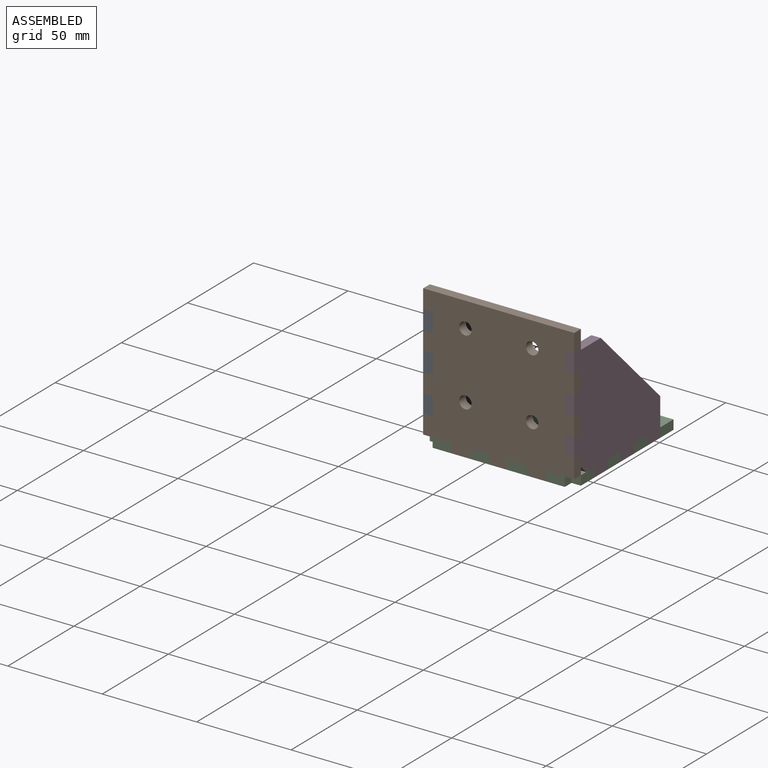
[diagram: assembled view]
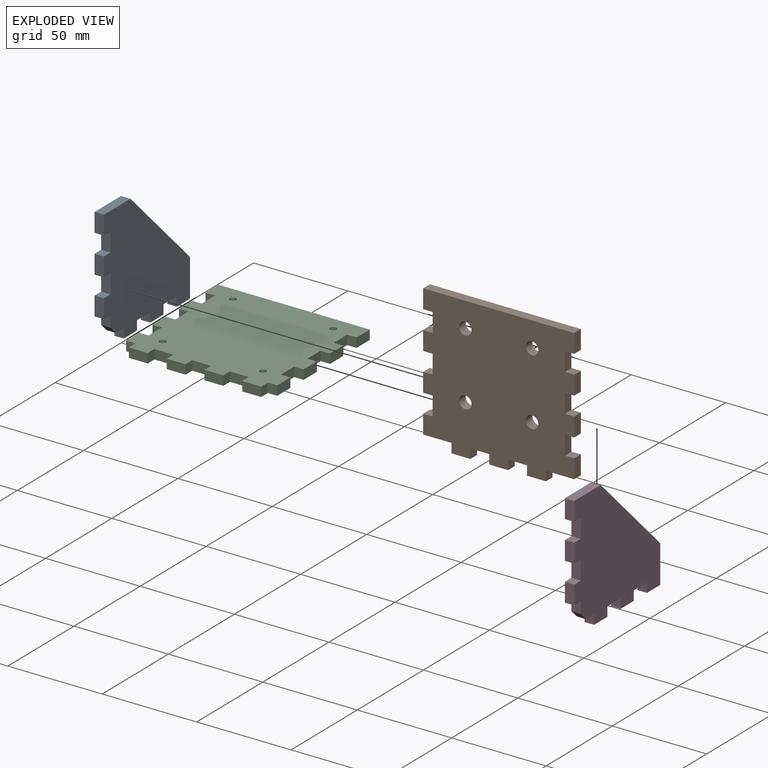
[diagram: exploded view]
GUIDED TOUR — MATED ASSEMBLY (Onshape document 3f007a9c0ce4e5aa89d190f3, AutoMate assembly 3f007a9c0ce4e5aa89d190f3_5e627fd75646f0ea4205f5be_51a73e98fbe0dfce0458883f_default)

This assembly has 4 components, labeled P0..P3 below (a component is one placed occurrence of a part; the same part can appear more than once), held together by 2 mates. A mate is a constraint between two components; its type names the relative motion it leaves free:
  FASTENED — locks the two components together rigidly (no relative motion).
Axis/direction vectors are unit vectors and 'through' points are millimeter coordinates, both in the assembly's world frame.

MATES
  1. FASTENED "Fastened 1": P2 <-> P1, direction (1.000, 0.000, 0.000) through (-28.48, -35.53, 2.22) mm
  2. FASTENED "Fastened 2": P1 <-> P3, direction (0.000, 0.000, 1.000) through (34.02, -35.53, 14.72) mm

ASSEMBLY ORDER
  1. P1 — the base component [order heuristic]
  2. P0 [order heuristic]
  3. P2 [order heuristic]
  4. P3 [order heuristic]
Order-tag legend:
  [order heuristic] — this assembly is geometrically interlocked (no collision-free removal order exists), so components are listed in mate-graph order; insertion feasibility is not verified.

Of the 4 components, 4 carry the full construction recipe — the FeatureScript program that regenerates the part's solid from scratch; the rest are supplied as boundary geometry only.
Each toured component is shown spotlighted twice — in the assembled view, then in the exploded view, where a leader line traces a displaced component back to its assembled socket (saturated green if recipe-attached, orange if geometry-only; every other component desaturated gray) — followed by its recipe or geometry summary and the mates that hold it.
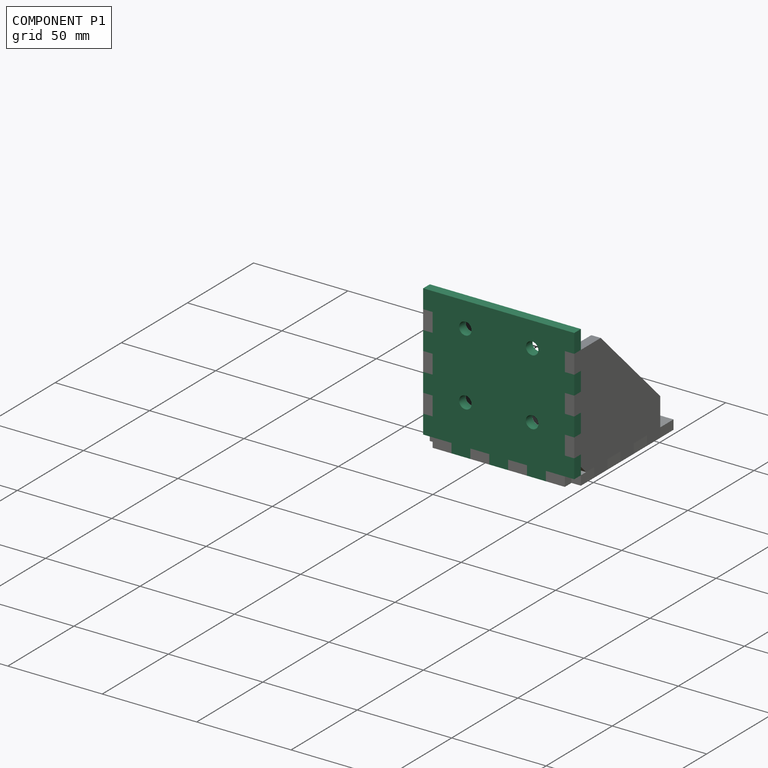
[diagram: component P1 — assembled]
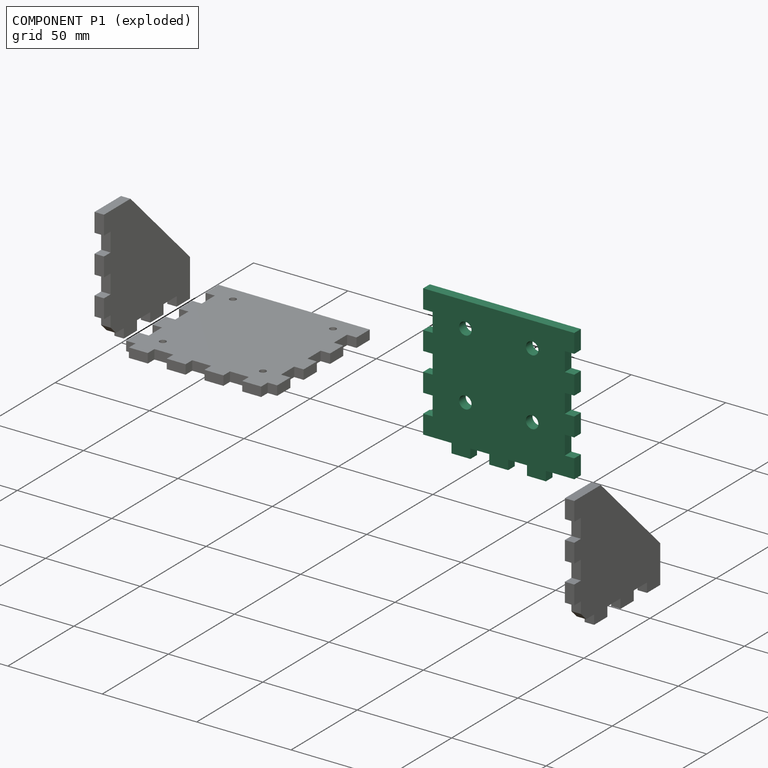
[diagram: component P1 — exploded]
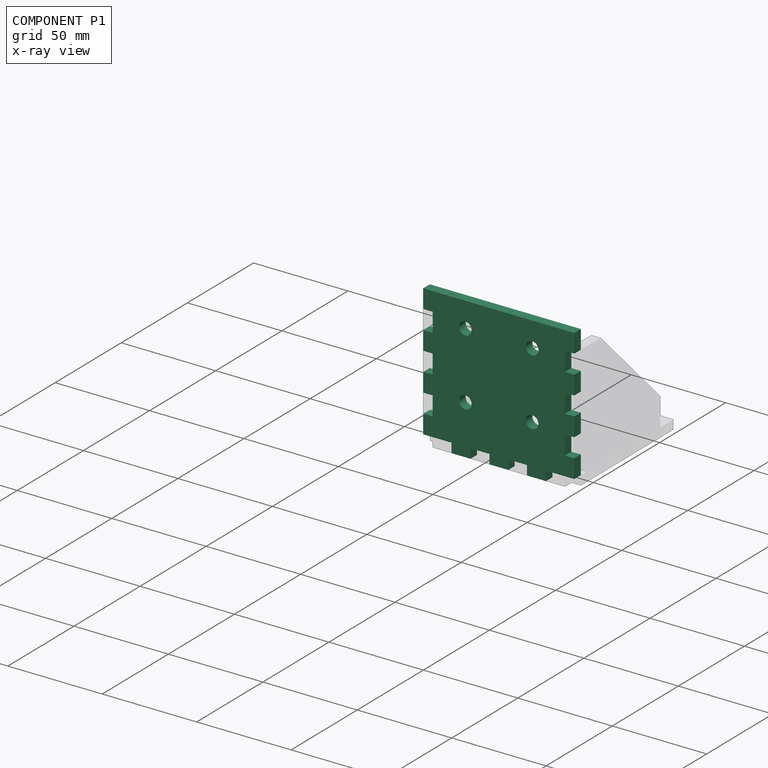
[diagram: component P1 — x-ray view]
COMPONENT P1 — recipe-attached (CADFS 00843545, mesh-verified: the recipe's output STEP matches this component's geometry to below the mesh-comparison resolution (tessellation chordal tolerance ~0.165 mm)).
Held by: FASTENED mate "Fastened 1" to P2; FASTENED mate "Fastened 2" to P3.
Construction recipe (FeatureScript — the CAD program that rebuilds this solid; sketch coordinates are in the units given by the * unit suffixes, e.g. mm):

FeatureScript 1511;
import(path : "onshape/std/geometry.fs", version : "1511.0");
import(path : "onshape/std/common.fs", version : "1511.0");
const mm = millimeter;
const VERTEX = EntityType.VERTEX;
const EDGE = EntityType.EDGE;
const FACE = EntityType.FACE;
const BODY = EntityType.BODY;
function v(x, y){return vector(x, y);}
function OD(order){return orderDisambiguation(order);}
function OSD(set){return originalSetDisambiguation(set);}
function TD(topology){return topologyDisambiguation(topology);}
function TDD(query){return trueDependencyDisambiguation(query);}
function sQuery(a, b, c) {return sketchEntityQuery(a, b, c);}

annotation { "Feature Type Name" : "Feature", "Feature Type Description" : "" }
export const myFeature = defineFeature(function(context is Context, id is Id, definition is map)
    precondition{}
    {
        {
            var Q0;
            Q0=qCreatedBy(makeId("Right.planeOp"),FACE);
            var sketch = newSketch(context, id + "F0", { "sketchPlane" : qUnion([Q0])});
            skLineSegment(sketch, "E0.bottom", {"start": v(35, 35) * mm, "end": v(-35, 35) * mm});
            skLineSegment(sketch, "E0.top", {"start": v(35, -35) * mm, "end": v(-35, -35) * mm});
            skLineSegment(sketch, "E0.left", {"start": v(35, 35) * mm, "end": v(35, -35) * mm});
            skLineSegment(sketch, "E0.right", {"start": v(-35, 35) * mm, "end": v(-35, -35) * mm});
            skPoint(sketch, "E0.middle", {"position": v(0, 0) * mm});
            skSolve(sketch);
        }
        {
            var Q0;
            Q0 = qSketchRegion(id + "F0", true);
            extrude(context, id + "F1", {"entities" : qUnion([Q0]), "endBound" : BoundingType.SYMMETRIC, "depth" : 5 * mm, "offsetDistance" : 25 * mm});
        }
        {
            var Q0;
            Q0=makeQuery(id+"F1.opExtrude","CAP_FACE",FACE,{"disambiguationData":[OSD([sQuery(id+"F0.wireOp",EDGE,"E0.bottom"),sQuery(id+"F0.wireOp",EDGE,"E0.top"),sQuery(id+"F0.wireOp",EDGE,"E0.left"),sQuery(id+"F0.wireOp",EDGE,"E0.right")])],"isStart":false});
            var sketch = newSketch(context, id + "F2", { "sketchPlane" : qUnion([Q0])});
            skLineSegment(sketch, "E1.bottom", {"start": v(-25, -35) * mm, "end": v(-15, -35) * mm});
            skLineSegment(sketch, "E1.top", {"start": v(-25, -40) * mm, "end": v(-15, -40) * mm});
            skLineSegment(sketch, "E1.left", {"start": v(-25, -35) * mm, "end": v(-25, -40) * mm});
            skLineSegment(sketch, "E1.right", {"start": v(-15, -35) * mm, "end": v(-15, -40) * mm});
            skLineSegment(sketch, "E2.1.0.0", {"start": v(5, -35) * mm, "end": v(5, -40) * mm});
            skLineSegment(sketch, "E2.1.0.1", {"start": v(-5, -35) * mm, "end": v(-5, -40) * mm});
            skLineSegment(sketch, "E2.1.0.2", {"start": v(-5, -40) * mm, "end": v(5, -40) * mm});
            skLineSegment(sketch, "E2.1.0.3", {"start": v(-5, -35) * mm, "end": v(5, -35) * mm});
            skLineSegment(sketch, "E2.2.0.0", {"start": v(25, -35) * mm, "end": v(25, -40) * mm});
            skLineSegment(sketch, "E2.2.0.1", {"start": v(15, -35) * mm, "end": v(15, -40) * mm});
            skLineSegment(sketch, "E2.2.0.2", {"start": v(15, -40) * mm, "end": v(25, -40) * mm});
            skLineSegment(sketch, "E2.2.0.3", {"start": v(15, -35) * mm, "end": v(25, -35) * mm});
            skLineSegment(sketch, "E2.direction1", {"start": v(-25, -40) * mm, "end": v(-5, -40) * mm, "construction": true});
            skSolve(sketch);
        }
        {
            var Q0;
            Q0 = qSketchRegion(id + "F2", true);
            extrude(context, id + "F3", {"entities" : qUnion([Q0]), "operationType" : NewBodyOperationType.ADD, "oppositeDirection" : true, "depth" : 5 * mm, "offsetDistance" : 25 * mm});
        }
        {
            var Q0;
            {var subQ1=sQuery(id+"F2.wireOp",EDGE,"E1.bottom");Q0=makeQuery(id+"F2.imprint","IMPRINT",FACE,{"disambiguationData":[TD([[makeQuery(id+"F2.imprint","IMPRINT",EDGE,{"derivedFrom":subQ1}),-1.0]])]});}
            var sketch = newSketch(context, id + "F4", { "sketchPlane" : qUnion([Q0])});
            skLineSegment(sketch, "E3.bottom", {"start": v(-35, -35) * mm, "end": v(-40, -35) * mm});
            skLineSegment(sketch, "E3.top", {"start": v(-35, -25) * mm, "end": v(-40, -25) * mm});
            skLineSegment(sketch, "E3.left", {"start": v(-35, -35) * mm, "end": v(-35, -25) * mm});
            skLineSegment(sketch, "E3.right", {"start": v(-40, -35) * mm, "end": v(-40, -25) * mm});
            skLineSegment(sketch, "E4.0.1.0", {"start": v(-35, -15) * mm, "end": v(-35, -5) * mm});
            skLineSegment(sketch, "E4.0.1.1", {"start": v(-40, -15) * mm, "end": v(-40, -5) * mm});
            skLineSegment(sketch, "E4.0.1.2", {"start": v(-35, -15) * mm, "end": v(-40, -15) * mm});
            skLineSegment(sketch, "E4.0.1.3", {"start": v(-35, -5) * mm, "end": v(-40, -5) * mm});
            skLineSegment(sketch, "E4.0.2.0", {"start": v(-35, 5) * mm, "end": v(-35, 15) * mm});
            skLineSegment(sketch, "E4.0.2.1", {"start": v(-40, 5) * mm, "end": v(-40, 15) * mm});
            skLineSegment(sketch, "E4.0.2.2", {"start": v(-35, 5) * mm, "end": v(-40, 5) * mm});
            skLineSegment(sketch, "E4.0.2.3", {"start": v(-35, 15) * mm, "end": v(-40, 15) * mm});
            skLineSegment(sketch, "E4.0.3.0", {"start": v(-35, 25) * mm, "end": v(-35, 35) * mm});
            skLineSegment(sketch, "E4.0.3.1", {"start": v(-40, 25) * mm, "end": v(-40, 35) * mm});
            skLineSegment(sketch, "E4.0.3.2", {"start": v(-35, 25) * mm, "end": v(-40, 25) * mm});
            skLineSegment(sketch, "E4.0.3.3", {"start": v(-35, 35) * mm, "end": v(-40, 35) * mm});
            skLineSegment(sketch, "E4.direction1", {"start": v(-40, -35) * mm, "end": v(-15, -35) * mm, "construction": true});
            skLineSegment(sketch, "E4.direction2", {"start": v(-40, -35) * mm, "end": v(-40, -15) * mm, "construction": true});
            skLineSegment(sketch, "E5.1.0.0", {"start": v(40, 25) * mm, "end": v(40, 35) * mm});
            skLineSegment(sketch, "E5.1.0.1", {"start": v(40, 25) * mm, "end": v(35, 25) * mm});
            skLineSegment(sketch, "E5.1.0.2", {"start": v(40, -35) * mm, "end": v(35, -35) * mm});
            skLineSegment(sketch, "E5.1.0.3", {"start": v(40, 15) * mm, "end": v(35, 15) * mm});
            skLineSegment(sketch, "E5.1.0.4", {"start": v(40, -35) * mm, "end": v(40, -25) * mm});
            skLineSegment(sketch, "E5.1.0.5", {"start": v(35, -35) * mm, "end": v(35, -15) * mm, "construction": true});
            skLineSegment(sketch, "E5.1.0.6", {"start": v(40, 5) * mm, "end": v(40, 15) * mm});
            skLineSegment(sketch, "E5.1.0.7", {"start": v(40, -15) * mm, "end": v(40, -5) * mm});
            skLineSegment(sketch, "E5.1.0.8", {"start": v(40, -15) * mm, "end": v(35, -15) * mm});
            skLineSegment(sketch, "E5.1.0.9", {"start": v(35, 5) * mm, "end": v(35, 15) * mm});
            skLineSegment(sketch, "E5.1.0.10", {"start": v(40, 35) * mm, "end": v(35, 35) * mm});
            skLineSegment(sketch, "E5.1.0.11", {"start": v(40, -25) * mm, "end": v(35, -25) * mm});
            skLineSegment(sketch, "E5.1.0.12", {"start": v(35, -15) * mm, "end": v(35, -5) * mm});
            skLineSegment(sketch, "E5.1.0.13", {"start": v(40, 5) * mm, "end": v(35, 5) * mm});
            skLineSegment(sketch, "E5.1.0.14", {"start": v(40, -5) * mm, "end": v(35, -5) * mm});
            skLineSegment(sketch, "E5.1.0.15", {"start": v(35, 25) * mm, "end": v(35, 35) * mm});
            skLineSegment(sketch, "E5.1.0.16", {"start": v(35, -35) * mm, "end": v(35, -25) * mm});
            skLineSegment(sketch, "E5.direction1", {"start": v(-40, -35) * mm, "end": v(35, -35) * mm, "construction": true});
            skSolve(sketch);
        }
        {
            var Q0;
            Q0 = qSketchRegion(id + "F4", true);
            var Q1;
            Q1=makeQuery(id+"F3.boolean.opBoolean","MERGE",FACE,{"derivedFrom":[makeQuery(id+"F1.opExtrude","CAP_FACE",FACE,{"disambiguationData":[OSD([sQuery(id+"F0.wireOp",EDGE,"E0.bottom"),sQuery(id+"F0.wireOp",EDGE,"E0.top"),sQuery(id+"F0.wireOp",EDGE,"E0.left"),sQuery(id+"F0.wireOp",EDGE,"E0.right")])],"isStart":true}),makeQuery(id+"F3.opExtrude","CAP_FACE",FACE,{"disambiguationData":[OSD([sQuery(id+"F2.wireOp",EDGE,"E1.bottom"),sQuery(id+"F2.wireOp",EDGE,"E1.top"),sQuery(id+"F2.wireOp",EDGE,"E1.left"),sQuery(id+"F2.wireOp",EDGE,"E1.right")])],"isStart":false}),makeQuery(id+"F3.opExtrude","CAP_FACE",FACE,{"disambiguationData":[OSD([sQuery(id+"F2.wireOp",EDGE,"E2.1.0.0"),sQuery(id+"F2.wireOp",EDGE,"E2.1.0.1"),sQuery(id+"F2.wireOp",EDGE,"E2.1.0.2"),sQuery(id+"F2.wireOp",EDGE,"E2.1.0.3")])],"isStart":false}),makeQuery(id+"F3.opExtrude","CAP_FACE",FACE,{"disambiguationData":[OSD([sQuery(id+"F2.wireOp",EDGE,"E2.2.0.0"),sQuery(id+"F2.wireOp",EDGE,"E2.2.0.1"),sQuery(id+"F2.wireOp",EDGE,"E2.2.0.2"),sQuery(id+"F2.wireOp",EDGE,"E2.2.0.3")])],"isStart":false})]});
            extrude(context, id + "F5", {"entities" : qUnion([Q0]), "operationType" : NewBodyOperationType.ADD, "endBound" : BoundingType.UP_TO_SURFACE, "oppositeDirection" : true, "depth" : 25 * mm, "endBoundEntityFace" : qUnion([Q1]), "offsetDistance" : 25 * mm});
        }
        {
            var Q0;
            {var subQ1=sQuery(id+"F2.wireOp",EDGE,"E1.bottom");Q0=makeQuery(id+"F2.imprint","IMPRINT",FACE,{"disambiguationData":[TD([[makeQuery(id+"F2.imprint","IMPRINT",EDGE,{"derivedFrom":subQ1}),-1.0]])]});}
            var sketch = newSketch(context, id + "F6", { "sketchPlane" : qUnion([Q0])});
            skCircle(sketch, "E6", {"center": v(0, 4) * mm, "radius": 25 * mm, "construction": true});
            skLineSegment(sketch, "E7.bottom", {"start": v(17.68, 21.68) * mm, "end": v(-17.68, 21.68) * mm, "construction": true});
            skLineSegment(sketch, "E7.top", {"start": v(17.68, -13.68) * mm, "end": v(-17.68, -13.68) * mm, "construction": true});
            skLineSegment(sketch, "E7.left", {"start": v(17.68, 21.68) * mm, "end": v(17.68, -13.68) * mm, "construction": true});
            skLineSegment(sketch, "E7.right", {"start": v(-17.68, 21.68) * mm, "end": v(-17.68, -13.68) * mm, "construction": true});
            skSolve(sketch);
        }
        {
            var Q0;
            Q0=sQuery(id+"F6.wireOp",VERTEX,"E7.bottom.end");
            var Q1;
            Q1=sQuery(id+"F6.wireOp",VERTEX,"E7.bottom.start");
            var Q2;
            Q2=sQuery(id+"F6.wireOp",VERTEX,"E7.top.start");
            var Q3;
            Q3=sQuery(id+"F6.wireOp",VERTEX,"E7.top.end");
            var Q4;
            Q4=makeQuery(id+"F1.opExtrude","SWEPT_BODY",BODY,{"disambiguationData":[OSD([sQuery(id+"F0.wireOp",EDGE,"E0.bottom"),sQuery(id+"F0.wireOp",EDGE,"E0.top"),sQuery(id+"F0.wireOp",EDGE,"E0.left"),sQuery(id+"F0.wireOp",EDGE,"E0.right")])]});
            hole(context, id + "F7", {"style" : HoleStyle.SIMPLE, "endStyle" : HoleEndStyle.THROUGH, "standardTappedOrClearance" : lookupTablePath({ "fit" : "Normal", "standard" : "ISO", "size" : "M6", "type" : "Clearance" }), "standardBlindInLast" : lookupTablePath({ "fit" : "Standard", "standard" : "ISO", "size" : "M6", "type" : "Clearance" }), "holeDiameter" : 6.6 * mm, "majorDiameter" : 5 * mm, "isTappedThrough" : true, "tappedDepth" : 12 * mm, "tapClearance" : 3, "locations" : qUnion([Q0, Q1, Q2, Q3]), "scope" : qUnion([Q4])});
        }
    });
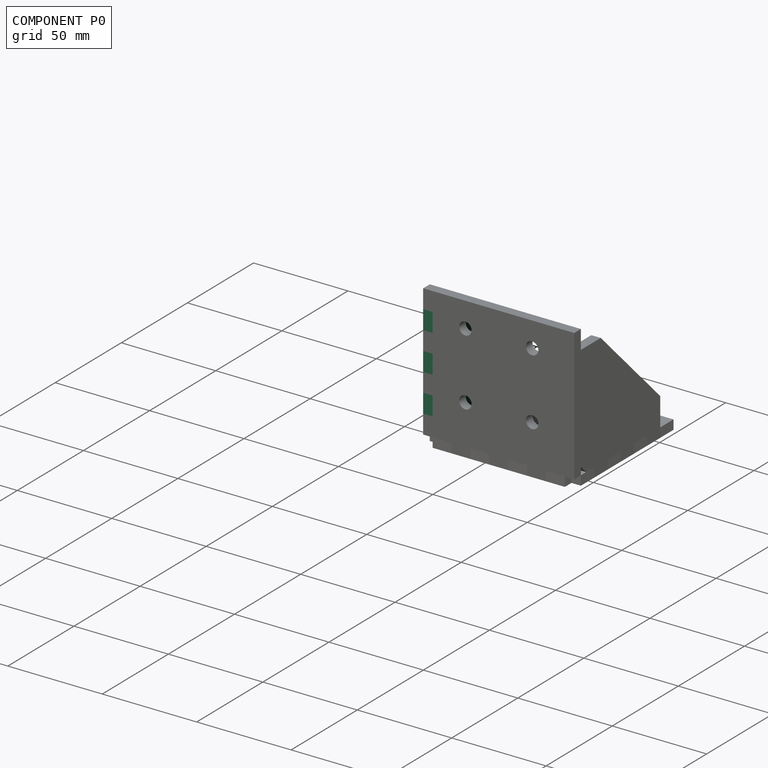
[diagram: component P0 — assembled]
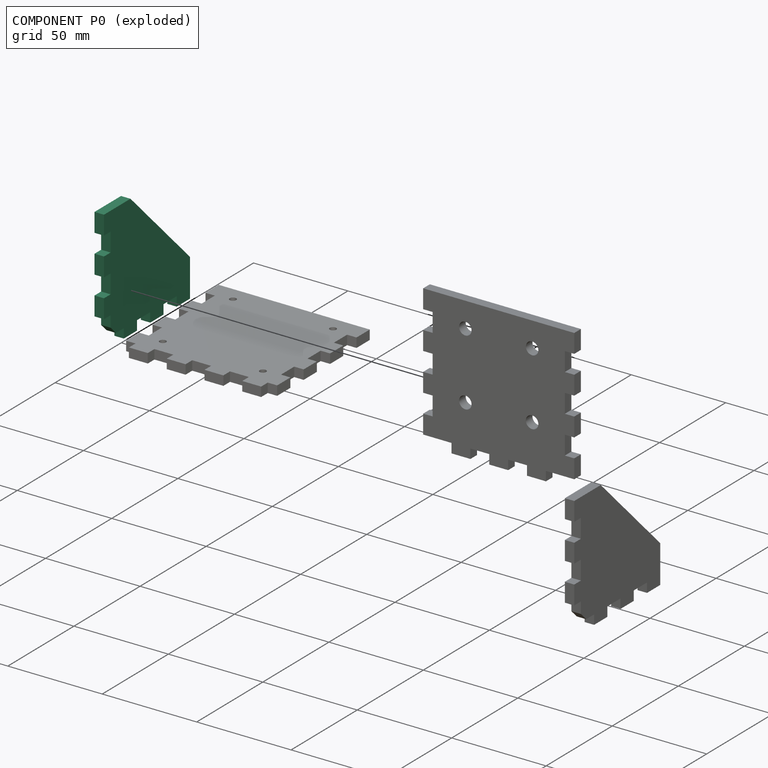
[diagram: component P0 — exploded]
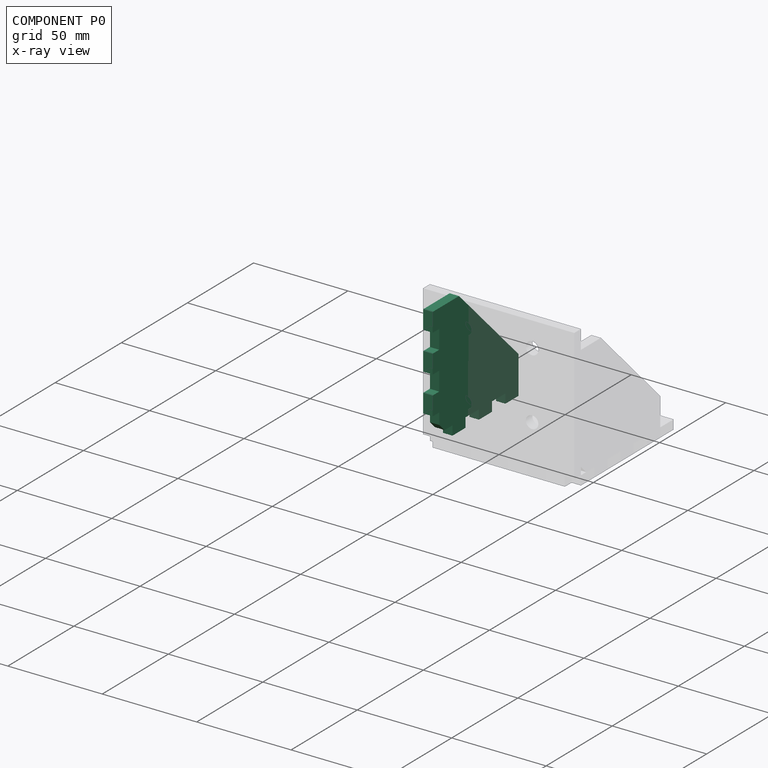
[diagram: component P0 — x-ray view]
COMPONENT P0 — recipe-attached (CADFS 00843546, mesh-verified: the recipe's output STEP matches this component's geometry to below the mesh-comparison resolution (tessellation chordal tolerance ~0.138 mm)).
Held by: no mates (free).
Construction recipe (FeatureScript — the CAD program that rebuilds this solid; sketch coordinates are in the units given by the * unit suffixes, e.g. mm):

FeatureScript 1511;
import(path : "onshape/std/geometry.fs", version : "1511.0");
import(path : "onshape/std/common.fs", version : "1511.0");
const mm = millimeter;
const VERTEX = EntityType.VERTEX;
const EDGE = EntityType.EDGE;
const FACE = EntityType.FACE;
const BODY = EntityType.BODY;
function v(x, y){return vector(x, y);}
function OD(order){return orderDisambiguation(order);}
function OSD(set){return originalSetDisambiguation(set);}
function TD(topology){return topologyDisambiguation(topology);}
function TDD(query){return trueDependencyDisambiguation(query);}
function sQuery(a, b, c) {return sketchEntityQuery(a, b, c);}

annotation { "Feature Type Name" : "Feature", "Feature Type Description" : "" }
export const myFeature = defineFeature(function(context is Context, id is Id, definition is map)
    precondition{}
    {
        {
            var Q0;
            Q0=qCreatedBy(makeId("Front.planeOp"),FACE);
            var sketch = newSketch(context, id + "F0", { "sketchPlane" : qUnion([Q0])});
            skLineSegment(sketch, "E0.bottom", {"start": v(30, 30) * mm, "end": v(-30, 30) * mm, "construction": true});
            skLineSegment(sketch, "E0.top", {"start": v(30, -30) * mm, "end": v(-30, -30) * mm});
            skLineSegment(sketch, "E0.left", {"start": v(30, 30) * mm, "end": v(30, -30) * mm, "construction": true});
            skLineSegment(sketch, "E0.right", {"start": v(-30, 30) * mm, "end": v(-30, -30) * mm});
            skPoint(sketch, "E0.middle", {"position": v(0, 0) * mm});
            skLineSegment(sketch, "E1", {"start": v(-30, 30) * mm, "end": v(-15, 30) * mm});
            skLineSegment(sketch, "E2", {"start": v(-15, 30) * mm, "end": v(30, -15) * mm});
            skLineSegment(sketch, "E3", {"start": v(30, -15) * mm, "end": v(30, -30) * mm});
            skSolve(sketch);
        }
        {
            var Q0;
            Q0 = qSketchRegion(id + "F0", true);
            extrude(context, id + "F1", {"entities" : qUnion([Q0]), "endBound" : BoundingType.SYMMETRIC, "depth" : 5 * mm, "offsetDistance" : 25 * mm});
        }
        {
            var Q0;
            Q0=makeQuery(id+"F1.opExtrude","CAP_FACE",FACE,{"disambiguationData":[OSD([sQuery(id+"F0.wireOp",EDGE,"E0.top"),sQuery(id+"F0.wireOp",EDGE,"E0.right"),sQuery(id+"F0.wireOp",EDGE,"E1"),sQuery(id+"F0.wireOp",EDGE,"E2"),sQuery(id+"F0.wireOp",EDGE,"E3")])],"isStart":false});
            var sketch = newSketch(context, id + "F2", { "sketchPlane" : qUnion([Q0])});
            skLineSegment(sketch, "E4.bottom", {"start": v(-30, 30) * mm, "end": v(-35, 30) * mm});
            skLineSegment(sketch, "E4.top", {"start": v(-30, 20) * mm, "end": v(-35, 20) * mm});
            skLineSegment(sketch, "E4.left", {"start": v(-30, 30) * mm, "end": v(-30, 20) * mm});
            skLineSegment(sketch, "E4.right", {"start": v(-35, 30) * mm, "end": v(-35, 20) * mm});
            skLineSegment(sketch, "E5.0.1.0", {"start": v(-30, 0) * mm, "end": v(-35, 0) * mm});
            skLineSegment(sketch, "E5.0.1.1", {"start": v(-30, 10) * mm, "end": v(-35, 10) * mm});
            skLineSegment(sketch, "E5.0.1.2", {"start": v(-30, 10) * mm, "end": v(-30, 0) * mm});
            skLineSegment(sketch, "E5.0.1.3", {"start": v(-35, 10) * mm, "end": v(-35, 0) * mm});
            skLineSegment(sketch, "E5.0.2.0", {"start": v(-30, -20) * mm, "end": v(-35, -20) * mm});
            skLineSegment(sketch, "E5.0.2.1", {"start": v(-30, -10) * mm, "end": v(-35, -10) * mm});
            skLineSegment(sketch, "E5.0.2.2", {"start": v(-30, -10) * mm, "end": v(-30, -20) * mm});
            skLineSegment(sketch, "E5.0.2.3", {"start": v(-35, -10) * mm, "end": v(-35, -20) * mm});
            skLineSegment(sketch, "E5.direction1", {"start": v(-35, 20) * mm, "end": v(-10, 20) * mm, "construction": true});
            skLineSegment(sketch, "E5.direction2", {"start": v(-35, 20) * mm, "end": v(-35, 0) * mm, "construction": true});
            skLineSegment(sketch, "E6.bottom", {"start": v(30, -30) * mm, "end": v(20, -30) * mm});
            skLineSegment(sketch, "E6.top", {"start": v(30, -35) * mm, "end": v(20, -35) * mm});
            skLineSegment(sketch, "E6.left", {"start": v(30, -30) * mm, "end": v(30, -35) * mm});
            skLineSegment(sketch, "E6.right", {"start": v(20, -30) * mm, "end": v(20, -35) * mm});
            skLineSegment(sketch, "E7.1.0.0", {"start": v(10, -35) * mm, "end": v(0, -35) * mm});
            skLineSegment(sketch, "E7.1.0.1", {"start": v(0, -30) * mm, "end": v(0, -35) * mm});
            skLineSegment(sketch, "E7.1.0.2", {"start": v(10, -30) * mm, "end": v(0, -30) * mm});
            skLineSegment(sketch, "E7.1.0.3", {"start": v(10, -30) * mm, "end": v(10, -35) * mm});
            skLineSegment(sketch, "E7.2.0.0", {"start": v(-10, -35) * mm, "end": v(-20, -35) * mm});
            skLineSegment(sketch, "E7.2.0.1", {"start": v(-20, -30) * mm, "end": v(-20, -35) * mm});
            skLineSegment(sketch, "E7.2.0.2", {"start": v(-10, -30) * mm, "end": v(-20, -30) * mm});
            skLineSegment(sketch, "E7.2.0.3", {"start": v(-10, -30) * mm, "end": v(-10, -35) * mm});
            skLineSegment(sketch, "E7.direction1", {"start": v(20, -35) * mm, "end": v(0, -35) * mm, "construction": true});
            skSolve(sketch);
        }
        {
            var Q0;
            Q0 = qSketchRegion(id + "F2", true);
            var Q1;
            Q1=makeQuery(id+"F1.opExtrude","CAP_FACE",FACE,{"disambiguationData":[OSD([sQuery(id+"F0.wireOp",EDGE,"E0.top"),sQuery(id+"F0.wireOp",EDGE,"E0.right"),sQuery(id+"F0.wireOp",EDGE,"E1"),sQuery(id+"F0.wireOp",EDGE,"E2"),sQuery(id+"F0.wireOp",EDGE,"E3")])],"isStart":true});
            extrude(context, id + "F3", {"entities" : qUnion([Q0]), "operationType" : NewBodyOperationType.ADD, "endBound" : BoundingType.UP_TO_SURFACE, "oppositeDirection" : true, "depth" : 25 * mm, "endBoundEntityFace" : qUnion([Q1]), "offsetDistance" : 25 * mm});
        }
        {
            var Q0;
            Q0=makeQuery(id+"F1.opExtrude","SWEPT_EDGE",EDGE,{"disambiguationData":[OSD([sQuery(id+"F0.wireOp",EDGE,"E0.top"),sQuery(id+"F0.wireOp",EDGE,"E0.right")])]});
            chamfer(context, id + "F4", {"entities" : qUnion([Q0]), "width" : 4 * mm, "tangentPropagation" : true});
        }
    });
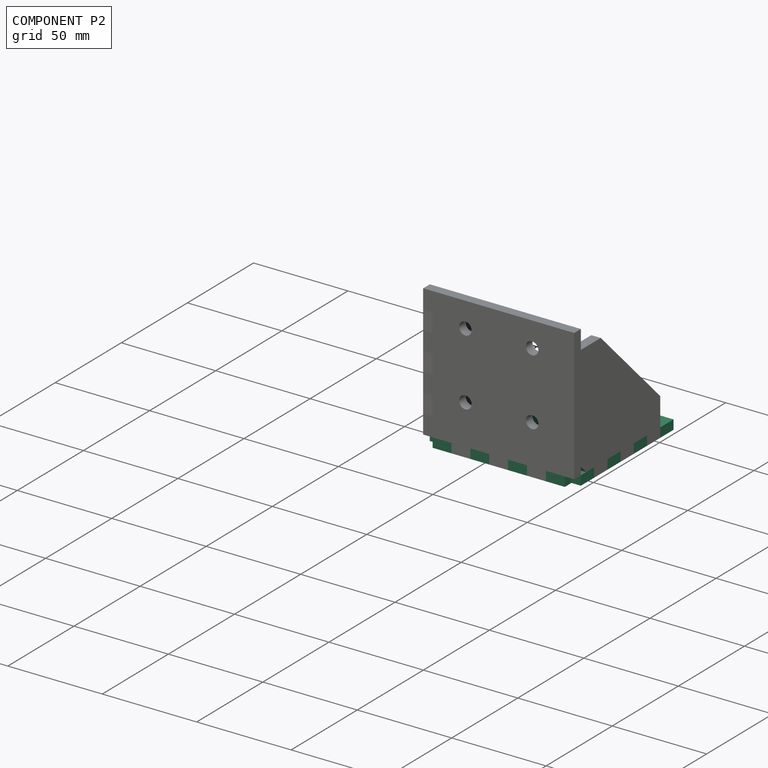
[diagram: component P2 — assembled]
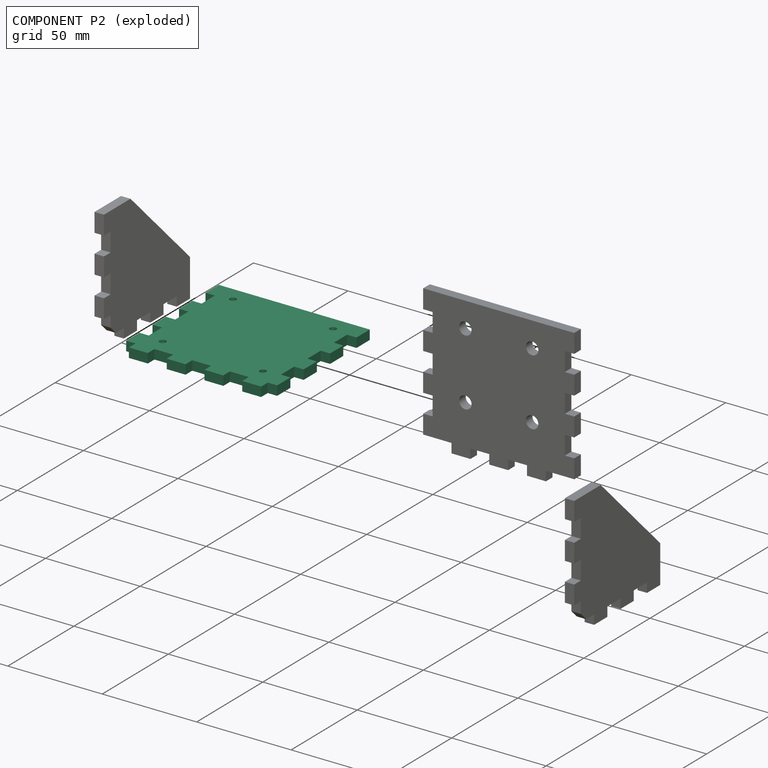
[diagram: component P2 — exploded]
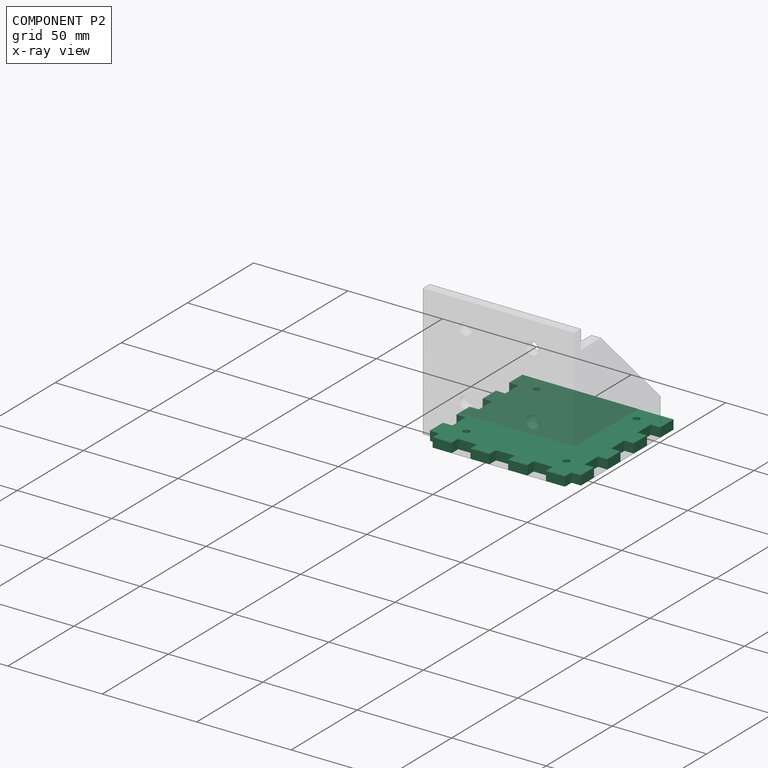
[diagram: component P2 — x-ray view]
COMPONENT P2 — recipe-attached (CADFS 00843544, mesh-verified: the recipe's output STEP matches this component's geometry to below the mesh-comparison resolution (tessellation chordal tolerance ~0.165 mm)).
Held by: FASTENED mate "Fastened 1" to P1.
Construction recipe (FeatureScript — the CAD program that rebuilds this solid; sketch coordinates are in the units given by the * unit suffixes, e.g. mm):

FeatureScript 1511;
import(path : "onshape/std/geometry.fs", version : "1511.0");
import(path : "onshape/std/common.fs", version : "1511.0");
const mm = millimeter;
const VERTEX = EntityType.VERTEX;
const EDGE = EntityType.EDGE;
const FACE = EntityType.FACE;
const BODY = EntityType.BODY;
function v(x, y){return vector(x, y);}
function OD(order){return orderDisambiguation(order);}
function OSD(set){return originalSetDisambiguation(set);}
function TD(topology){return topologyDisambiguation(topology);}
function TDD(query){return trueDependencyDisambiguation(query);}
function sQuery(a, b, c) {return sketchEntityQuery(a, b, c);}

annotation { "Feature Type Name" : "Feature", "Feature Type Description" : "" }
export const myFeature = defineFeature(function(context is Context, id is Id, definition is map)
    precondition{}
    {
        {
            var Q0;
            Q0=qCreatedBy(makeId("Top.planeOp"),FACE);
            var sketch = newSketch(context, id + "F0", { "sketchPlane" : qUnion([Q0])});
            skLineSegment(sketch, "E0.bottom", {"start": v(35, 35) * mm, "end": v(-35, 35) * mm});
            skLineSegment(sketch, "E0.top", {"start": v(35, -35) * mm, "end": v(-35, -35) * mm});
            skLineSegment(sketch, "E0.left", {"start": v(35, 35) * mm, "end": v(35, -35) * mm});
            skLineSegment(sketch, "E0.right", {"start": v(-35, 35) * mm, "end": v(-35, -35) * mm});
            skPoint(sketch, "E0.middle", {"position": v(0, 0) * mm});
            skSolve(sketch);
        }
        {
            var Q0;
            Q0=makeQuery(id+"F0.imprint","IMPRINT",FACE,{"disambiguationData":[TD([[makeQuery(id+"F0.imprint","IMPRINT",EDGE,{"derivedFrom":sQuery(id+"F0.wireOp",EDGE,"E0.bottom")}),1.0]])]});
            extrude(context, id + "F1", {"entities" : qUnion([Q0]), "endBound" : BoundingType.SYMMETRIC, "depth" : 5 * mm, "offsetDistance" : 25 * mm});
        }
        {
            var Q0;
            Q0=makeQuery(id+"F1.opExtrude","CAP_FACE",FACE,{"disambiguationData":[OSD([sQuery(id+"F0.wireOp",EDGE,"E0.bottom"),sQuery(id+"F0.wireOp",EDGE,"E0.top"),sQuery(id+"F0.wireOp",EDGE,"E0.left"),sQuery(id+"F0.wireOp",EDGE,"E0.right")])],"isStart":true});
            var sketch = newSketch(context, id + "F2", { "sketchPlane" : qUnion([Q0])});
            skLineSegment(sketch, "E1.bottom", {"start": v(-35, -35) * mm, "end": v(-40, -35) * mm});
            skLineSegment(sketch, "E1.top", {"start": v(-35, -25) * mm, "end": v(-40, -25) * mm});
            skLineSegment(sketch, "E1.left", {"start": v(-35, -35) * mm, "end": v(-35, -25) * mm});
            skLineSegment(sketch, "E1.right", {"start": v(-40, -35) * mm, "end": v(-40, -25) * mm});
            skLineSegment(sketch, "E2.bottom", {"start": v(35, -35) * mm, "end": v(40, -35) * mm});
            skLineSegment(sketch, "E2.top", {"start": v(35, -25) * mm, "end": v(40, -25) * mm});
            skLineSegment(sketch, "E2.left", {"start": v(35, -35) * mm, "end": v(35, -25) * mm});
            skLineSegment(sketch, "E2.right", {"start": v(40, -35) * mm, "end": v(40, -25) * mm});
            skLineSegment(sketch, "E3.0.1.0", {"start": v(35, -15) * mm, "end": v(40, -15) * mm});
            skLineSegment(sketch, "E3.0.1.1", {"start": v(40, -15) * mm, "end": v(40, -5) * mm});
            skLineSegment(sketch, "E3.0.1.2", {"start": v(-35, -15) * mm, "end": v(-35, -5) * mm});
            skLineSegment(sketch, "E3.0.1.3", {"start": v(-35, -15) * mm, "end": v(-40, -15) * mm});
            skLineSegment(sketch, "E3.0.1.4", {"start": v(35, -15) * mm, "end": v(35, -5) * mm});
            skLineSegment(sketch, "E3.0.1.5", {"start": v(-35, -5) * mm, "end": v(-40, -5) * mm});
            skLineSegment(sketch, "E3.0.1.6", {"start": v(35, -5) * mm, "end": v(40, -5) * mm});
            skLineSegment(sketch, "E3.0.1.7", {"start": v(-40, -15) * mm, "end": v(-40, -5) * mm});
            skLineSegment(sketch, "E3.0.2.0", {"start": v(35, 5) * mm, "end": v(40, 5) * mm});
            skLineSegment(sketch, "E3.0.2.1", {"start": v(40, 5) * mm, "end": v(40, 15) * mm});
            skLineSegment(sketch, "E3.0.2.2", {"start": v(-35, 5) * mm, "end": v(-35, 15) * mm});
            skLineSegment(sketch, "E3.0.2.3", {"start": v(-35, 5) * mm, "end": v(-40, 5) * mm});
            skLineSegment(sketch, "E3.0.2.4", {"start": v(35, 5) * mm, "end": v(35, 15) * mm});
            skLineSegment(sketch, "E3.0.2.5", {"start": v(-35, 15) * mm, "end": v(-40, 15) * mm});
            skLineSegment(sketch, "E3.0.2.6", {"start": v(35, 15) * mm, "end": v(40, 15) * mm});
            skLineSegment(sketch, "E3.0.2.7", {"start": v(-40, 5) * mm, "end": v(-40, 15) * mm});
            skLineSegment(sketch, "E3.direction1", {"start": v(-40, -35) * mm, "end": v(-15, -35) * mm, "construction": true});
            skLineSegment(sketch, "E3.direction2", {"start": v(-40, -35) * mm, "end": v(-40, -15) * mm, "construction": true});
            skLineSegment(sketch, "E4.0.0.3", {"start": v(35, 25) * mm, "end": v(40, 25) * mm});
            skLineSegment(sketch, "E4.3.0.3", {"start": v(40, 25) * mm, "end": v(40, 35) * mm});
            skLineSegment(sketch, "E4.6.0.3", {"start": v(-35, 25) * mm, "end": v(-35, 35) * mm});
            skLineSegment(sketch, "E4.9.0.3", {"start": v(-35, 25) * mm, "end": v(-40, 25) * mm});
            skLineSegment(sketch, "E4.12.0.3", {"start": v(35, 25) * mm, "end": v(35, 35) * mm});
            skLineSegment(sketch, "E4.15.0.3", {"start": v(-35, 35) * mm, "end": v(-40, 35) * mm});
            skLineSegment(sketch, "E4.18.0.3", {"start": v(35, 35) * mm, "end": v(40, 35) * mm});
            skLineSegment(sketch, "E4.21.0.3", {"start": v(-40, 25) * mm, "end": v(-40, 35) * mm});
            skSolve(sketch);
        }
        {
            var Q0;
            Q0 = qSketchRegion(id + "F2", true);
            var Q1;
            Q1=makeQuery(id+"F1.opExtrude","CAP_FACE",FACE,{"disambiguationData":[OSD([sQuery(id+"F0.wireOp",EDGE,"E0.bottom"),sQuery(id+"F0.wireOp",EDGE,"E0.top"),sQuery(id+"F0.wireOp",EDGE,"E0.left"),sQuery(id+"F0.wireOp",EDGE,"E0.right")])],"isStart":false});
            extrude(context, id + "F3", {"entities" : qUnion([Q0]), "operationType" : NewBodyOperationType.ADD, "endBound" : BoundingType.UP_TO_SURFACE, "oppositeDirection" : true, "depth" : 25 * mm, "endBoundEntityFace" : qUnion([Q1]), "offsetDistance" : 25 * mm});
        }
        {
            var Q0;
            Q0=makeQuery(id+"F3.boolean.opBoolean","MERGE",FACE,{"derivedFrom":[makeQuery(id+"F1.opExtrude","CAP_FACE",FACE,{"disambiguationData":[OSD([sQuery(id+"F0.wireOp",EDGE,"E0.bottom"),sQuery(id+"F0.wireOp",EDGE,"E0.top"),sQuery(id+"F0.wireOp",EDGE,"E0.left"),sQuery(id+"F0.wireOp",EDGE,"E0.right")])],"isStart":true}),makeQuery(id+"F3.opExtrude","CAP_FACE",FACE,{"disambiguationData":[OSD([sQuery(id+"F2.wireOp",EDGE,"E1.bottom"),sQuery(id+"F2.wireOp",EDGE,"E1.top"),sQuery(id+"F2.wireOp",EDGE,"E1.left"),sQuery(id+"F2.wireOp",EDGE,"E1.right")])],"isStart":true}),makeQuery(id+"F3.opExtrude","CAP_FACE",FACE,{"disambiguationData":[OSD([sQuery(id+"F2.wireOp",EDGE,"E2.bottom"),sQuery(id+"F2.wireOp",EDGE,"E2.top"),sQuery(id+"F2.wireOp",EDGE,"E2.left"),sQuery(id+"F2.wireOp",EDGE,"E2.right")])],"isStart":true}),makeQuery(id+"F3.opExtrude","CAP_FACE",FACE,{"disambiguationData":[OSD([sQuery(id+"F2.wireOp",EDGE,"E3.0.1.0"),sQuery(id+"F2.wireOp",EDGE,"E3.0.1.1"),sQuery(id+"F2.wireOp",EDGE,"E3.0.1.4"),sQuery(id+"F2.wireOp",EDGE,"E3.0.1.6")])],"isStart":true}),makeQuery(id+"F3.opExtrude","CAP_FACE",FACE,{"disambiguationData":[OSD([sQuery(id+"F2.wireOp",EDGE,"E3.0.1.2"),sQuery(id+"F2.wireOp",EDGE,"E3.0.1.3"),sQuery(id+"F2.wireOp",EDGE,"E3.0.1.5"),sQuery(id+"F2.wireOp",EDGE,"E3.0.1.7")])],"isStart":true}),makeQuery(id+"F3.opExtrude","CAP_FACE",FACE,{"disambiguationData":[OSD([sQuery(id+"F2.wireOp",EDGE,"E3.0.2.0"),sQuery(id+"F2.wireOp",EDGE,"E3.0.2.1"),sQuery(id+"F2.wireOp",EDGE,"E3.0.2.4"),sQuery(id+"F2.wireOp",EDGE,"E3.0.2.6")])],"isStart":true}),makeQuery(id+"F3.opExtrude","CAP_FACE",FACE,{"disambiguationData":[OSD([sQuery(id+"F2.wireOp",EDGE,"E3.0.2.2"),sQuery(id+"F2.wireOp",EDGE,"E3.0.2.3"),sQuery(id+"F2.wireOp",EDGE,"E3.0.2.5"),sQuery(id+"F2.wireOp",EDGE,"E3.0.2.7")])],"isStart":true}),makeQuery(id+"F3.opExtrude","CAP_FACE",FACE,{"disambiguationData":[OSD([sQuery(id+"F2.wireOp",EDGE,"E4.0.0.3"),sQuery(id+"F2.wireOp",EDGE,"E4.3.0.3"),sQuery(id+"F2.wireOp",EDGE,"E4.12.0.3"),sQuery(id+"F2.wireOp",EDGE,"E4.18.0.3")])],"isStart":true}),makeQuery(id+"F3.opExtrude","CAP_FACE",FACE,{"disambiguationData":[OSD([sQuery(id+"F2.wireOp",EDGE,"E4.6.0.3"),sQuery(id+"F2.wireOp",EDGE,"E4.9.0.3"),sQuery(id+"F2.wireOp",EDGE,"E4.15.0.3"),sQuery(id+"F2.wireOp",EDGE,"E4.21.0.3")])],"isStart":true})]});
            var sketch = newSketch(context, id + "F4", { "sketchPlane" : qUnion([Q0])});
            skLineSegment(sketch, "E5.bottom", {"start": v(-35, 35) * mm, "end": v(-25, 35) * mm});
            skLineSegment(sketch, "E5.top", {"start": v(-35, 40) * mm, "end": v(-25, 40) * mm});
            skLineSegment(sketch, "E5.left", {"start": v(-35, 35) * mm, "end": v(-35, 40) * mm});
            skLineSegment(sketch, "E5.right", {"start": v(-25, 35) * mm, "end": v(-25, 40) * mm});
            skLineSegment(sketch, "E6.1.0.0", {"start": v(-5, 35) * mm, "end": v(-5, 40) * mm});
            skLineSegment(sketch, "E6.1.0.1", {"start": v(-15, 40) * mm, "end": v(-5, 40) * mm});
            skLineSegment(sketch, "E6.1.0.2", {"start": v(-15, 35) * mm, "end": v(-15, 40) * mm});
            skLineSegment(sketch, "E6.1.0.3", {"start": v(-15, 35) * mm, "end": v(-5, 35) * mm});
            skLineSegment(sketch, "E6.2.0.0", {"start": v(15, 35) * mm, "end": v(15, 40) * mm});
            skLineSegment(sketch, "E6.2.0.1", {"start": v(5, 40) * mm, "end": v(15, 40) * mm});
            skLineSegment(sketch, "E6.2.0.2", {"start": v(5, 35) * mm, "end": v(5, 40) * mm});
            skLineSegment(sketch, "E6.2.0.3", {"start": v(5, 35) * mm, "end": v(15, 35) * mm});
            skLineSegment(sketch, "E6.3.0.0", {"start": v(35, 35) * mm, "end": v(35, 40) * mm});
            skLineSegment(sketch, "E6.3.0.1", {"start": v(25, 40) * mm, "end": v(35, 40) * mm});
            skLineSegment(sketch, "E6.3.0.2", {"start": v(25, 35) * mm, "end": v(25, 40) * mm});
            skLineSegment(sketch, "E6.3.0.3", {"start": v(25, 35) * mm, "end": v(35, 35) * mm});
            skLineSegment(sketch, "E6.direction1", {"start": v(-35, 35) * mm, "end": v(-15, 35) * mm, "construction": true});
            skSolve(sketch);
        }
        {
            var Q0;
            Q0 = qSketchRegion(id + "F4", true);
            var Q1;
            {var subQ0=sQuery(id+"F0.wireOp",EDGE,"E0.right");var subQ1=sQuery(id+"F0.wireOp",EDGE,"E0.left");var subQ2=sQuery(id+"F0.wireOp",EDGE,"E0.top");var subQ3=sQuery(id+"F0.wireOp",EDGE,"E0.bottom");Q1=makeQuery(id+"F3.boolean.opBoolean","MERGE",FACE,{"derivedFrom":[makeQuery(id+"F1.opExtrude","CAP_FACE",FACE,{"disambiguationData":[OSD([subQ3,subQ2,subQ1,subQ0])],"isStart":false}),makeQuery(id+"F3.opExtrude","CAP_FACE",FACE,{"disambiguationData":[OSD([subQ3,subQ2,subQ1,subQ0]),OD(0.0)],"isStart":false}),makeQuery(id+"F3.opExtrude","CAP_FACE",FACE,{"disambiguationData":[OSD([subQ3,subQ2,subQ1,subQ0]),OD(1.0)],"isStart":false}),makeQuery(id+"F3.opExtrude","CAP_FACE",FACE,{"disambiguationData":[OSD([subQ3,subQ2,subQ1,subQ0]),OD(2.0)],"isStart":false}),makeQuery(id+"F3.opExtrude","CAP_FACE",FACE,{"disambiguationData":[OSD([subQ3,subQ2,subQ1,subQ0]),OD(3.0)],"isStart":false}),makeQuery(id+"F3.opExtrude","CAP_FACE",FACE,{"disambiguationData":[OSD([subQ3,subQ2,subQ1,subQ0]),OD(4.0)],"isStart":false}),makeQuery(id+"F3.opExtrude","CAP_FACE",FACE,{"disambiguationData":[OSD([subQ3,subQ2,subQ1,subQ0]),OD(5.0)],"isStart":false}),makeQuery(id+"F3.opExtrude","CAP_FACE",FACE,{"disambiguationData":[OSD([subQ3,subQ2,subQ1,subQ0]),OD(6.0)],"isStart":false}),makeQuery(id+"F3.opExtrude","CAP_FACE",FACE,{"disambiguationData":[OSD([subQ3,subQ2,subQ1,subQ0]),OD(7.0)],"isStart":false})]});}
            extrude(context, id + "F5", {"entities" : qUnion([Q0]), "operationType" : NewBodyOperationType.ADD, "endBound" : BoundingType.UP_TO_SURFACE, "oppositeDirection" : true, "depth" : 25 * mm, "endBoundEntityFace" : qUnion([Q1]), "offsetDistance" : 25 * mm});
        }
        {
            var Q0;
            Q0=makeQuery(id+"F5.boolean.opBoolean","MERGE",FACE,{"derivedFrom":[makeQuery(id+"F3.boolean.opBoolean","MERGE",FACE,{"derivedFrom":[makeQuery(id+"F1.opExtrude","CAP_FACE",FACE,{"disambiguationData":[OSD([sQuery(id+"F0.wireOp",EDGE,"E0.bottom"),sQuery(id+"F0.wireOp",EDGE,"E0.top"),sQuery(id+"F0.wireOp",EDGE,"E0.left"),sQuery(id+"F0.wireOp",EDGE,"E0.right")])],"isStart":true}),makeQuery(id+"F3.opExtrude","CAP_FACE",FACE,{"disambiguationData":[OSD([sQuery(id+"F2.wireOp",EDGE,"E1.bottom"),sQuery(id+"F2.wireOp",EDGE,"E1.top"),sQuery(id+"F2.wireOp",EDGE,"E1.left"),sQuery(id+"F2.wireOp",EDGE,"E1.right")])],"isStart":true}),makeQuery(id+"F3.opExtrude","CAP_FACE",FACE,{"disambiguationData":[OSD([sQuery(id+"F2.wireOp",EDGE,"E2.bottom"),sQuery(id+"F2.wireOp",EDGE,"E2.top"),sQuery(id+"F2.wireOp",EDGE,"E2.left"),sQuery(id+"F2.wireOp",EDGE,"E2.right")])],"isStart":true}),makeQuery(id+"F3.opExtrude","CAP_FACE",FACE,{"disambiguationData":[OSD([sQuery(id+"F2.wireOp",EDGE,"E3.0.1.0"),sQuery(id+"F2.wireOp",EDGE,"E3.0.1.1"),sQuery(id+"F2.wireOp",EDGE,"E3.0.1.4"),sQuery(id+"F2.wireOp",EDGE,"E3.0.1.6")])],"isStart":true}),makeQuery(id+"F3.opExtrude","CAP_FACE",FACE,{"disambiguationData":[OSD([sQuery(id+"F2.wireOp",EDGE,"E3.0.1.2"),sQuery(id+"F2.wireOp",EDGE,"E3.0.1.3"),sQuery(id+"F2.wireOp",EDGE,"E3.0.1.5"),sQuery(id+"F2.wireOp",EDGE,"E3.0.1.7")])],"isStart":true}),makeQuery(id+"F3.opExtrude","CAP_FACE",FACE,{"disambiguationData":[OSD([sQuery(id+"F2.wireOp",EDGE,"E3.0.2.0"),sQuery(id+"F2.wireOp",EDGE,"E3.0.2.1"),sQuery(id+"F2.wireOp",EDGE,"E3.0.2.4"),sQuery(id+"F2.wireOp",EDGE,"E3.0.2.6")])],"isStart":true}),makeQuery(id+"F3.opExtrude","CAP_FACE",FACE,{"disambiguationData":[OSD([sQuery(id+"F2.wireOp",EDGE,"E3.0.2.2"),sQuery(id+"F2.wireOp",EDGE,"E3.0.2.3"),sQuery(id+"F2.wireOp",EDGE,"E3.0.2.5"),sQuery(id+"F2.wireOp",EDGE,"E3.0.2.7")])],"isStart":true}),makeQuery(id+"F3.opExtrude","CAP_FACE",FACE,{"disambiguationData":[OSD([sQuery(id+"F2.wireOp",EDGE,"E4.0.0.3"),sQuery(id+"F2.wireOp",EDGE,"E4.3.0.3"),sQuery(id+"F2.wireOp",EDGE,"E4.12.0.3"),sQuery(id+"F2.wireOp",EDGE,"E4.18.0.3")])],"isStart":true}),makeQuery(id+"F3.opExtrude","CAP_FACE",FACE,{"disambiguationData":[OSD([sQuery(id+"F2.wireOp",EDGE,"E4.6.0.3"),sQuery(id+"F2.wireOp",EDGE,"E4.9.0.3"),sQuery(id+"F2.wireOp",EDGE,"E4.15.0.3"),sQuery(id+"F2.wireOp",EDGE,"E4.21.0.3")])],"isStart":true})]}),makeQuery(id+"F5.opExtrude","CAP_FACE",FACE,{"disambiguationData":[OSD([sQuery(id+"F4.wireOp",EDGE,"E5.bottom"),sQuery(id+"F4.wireOp",EDGE,"E5.top"),sQuery(id+"F4.wireOp",EDGE,"E5.left"),sQuery(id+"F4.wireOp",EDGE,"E5.right")])],"isStart":true}),makeQuery(id+"F5.opExtrude","CAP_FACE",FACE,{"disambiguationData":[OSD([sQuery(id+"F4.wireOp",EDGE,"E6.1.0.0"),sQuery(id+"F4.wireOp",EDGE,"E6.1.0.1"),sQuery(id+"F4.wireOp",EDGE,"E6.1.0.2"),sQuery(id+"F4.wireOp",EDGE,"E6.1.0.3")])],"isStart":true}),makeQuery(id+"F5.opExtrude","CAP_FACE",FACE,{"disambiguationData":[OSD([sQuery(id+"F4.wireOp",EDGE,"E6.2.0.0"),sQuery(id+"F4.wireOp",EDGE,"E6.2.0.1"),sQuery(id+"F4.wireOp",EDGE,"E6.2.0.2"),sQuery(id+"F4.wireOp",EDGE,"E6.2.0.3")])],"isStart":true}),makeQuery(id+"F5.opExtrude","CAP_FACE",FACE,{"disambiguationData":[OSD([sQuery(id+"F4.wireOp",EDGE,"E6.3.0.0"),sQuery(id+"F4.wireOp",EDGE,"E6.3.0.1"),sQuery(id+"F4.wireOp",EDGE,"E6.3.0.2"),sQuery(id+"F4.wireOp",EDGE,"E6.3.0.3")])],"isStart":true})]});
            var sketch = newSketch(context, id + "F6", { "sketchPlane" : qUnion([Q0])});
            skLineSegment(sketch, "E7.bottom", {"start": v(-26.5, -26.5) * mm, "end": v(26.5, -26.5) * mm, "construction": true});
            skLineSegment(sketch, "E7.top", {"start": v(-26.5, 26.5) * mm, "end": v(26.5, 26.5) * mm, "construction": true});
            skLineSegment(sketch, "E7.left", {"start": v(-26.5, -26.5) * mm, "end": v(-26.5, 26.5) * mm, "construction": true});
            skLineSegment(sketch, "E7.right", {"start": v(26.5, -26.5) * mm, "end": v(26.5, 26.5) * mm, "construction": true});
            skLineSegment(sketch, "E8", {"start": v(26.5, 26.5) * mm, "end": v(-26.5, -26.5) * mm, "construction": true});
            skLineSegment(sketch, "E9.direction2", {"start": v(-26.5, 26.5) * mm, "end": v(-26.5, -26.5) * mm, "construction": true});
            skSolve(sketch);
        }
        {
            var Q0;
            Q0=sQuery(id+"F6.wireOp",VERTEX,"E7.top.start");
            var Q1;
            Q1=sQuery(id+"F6.wireOp",VERTEX,"E7.top.end");
            var Q2;
            Q2=sQuery(id+"F6.wireOp",VERTEX,"E7.bottom.end");
            var Q3;
            Q3=sQuery(id+"F6.wireOp",VERTEX,"E7.bottom.start");
            var Q4;
            Q4=makeQuery(id+"F1.opExtrude","SWEPT_BODY",BODY,{"disambiguationData":[OSD([sQuery(id+"F0.wireOp",EDGE,"E0.bottom"),sQuery(id+"F0.wireOp",EDGE,"E0.top"),sQuery(id+"F0.wireOp",EDGE,"E0.left"),sQuery(id+"F0.wireOp",EDGE,"E0.right")])]});
            hole(context, id + "F7", {"style" : HoleStyle.SIMPLE, "endStyle" : HoleEndStyle.THROUGH, "holeDiameter" : 3.4 * mm, "majorDiameter" : 5 * mm, "isTappedThrough" : true, "tappedDepth" : 12 * mm, "tapClearance" : 3, "locations" : qUnion([Q0, Q1, Q2, Q3]), "scope" : qUnion([Q4])});
        }
    });
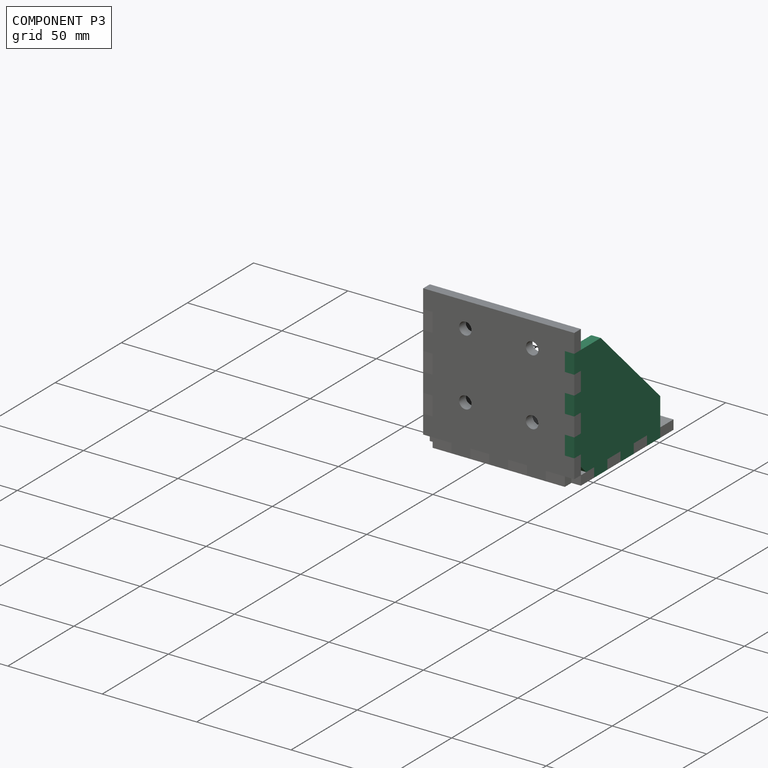
[diagram: component P3 — assembled]
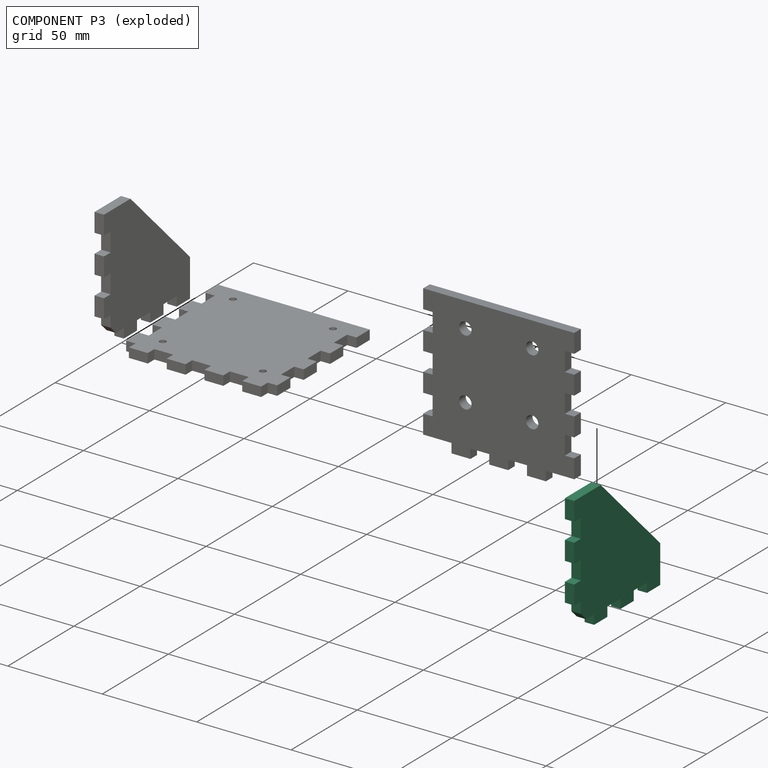
[diagram: component P3 — exploded]
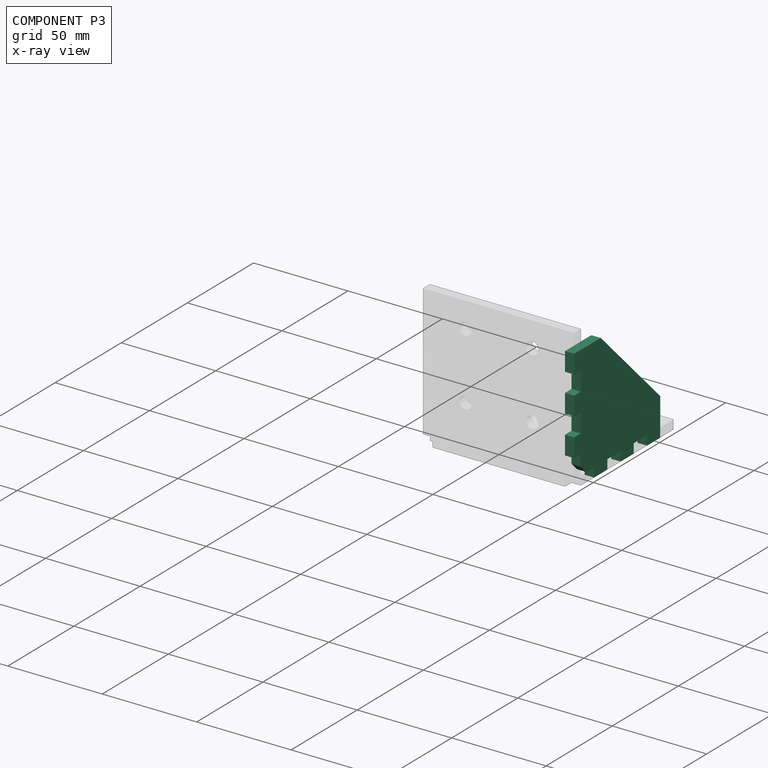
[diagram: component P3 — x-ray view]
COMPONENT P3 — same part as P0 (CADFS 00843546); its construction recipe is shown at P0.
Held by: FASTENED mate "Fastened 2" to P1.
PROVENANCE & LICENSES
Assembly (occurrences, transforms, mates, per-part STEP geometry): AutoMate dataset, Zenodo record 7776208, CC0.
Construction recipes: CADFS (HuggingFace VladPyatov/CADFS, CC-BY-4.0, layered over the ABC dataset), FeatureScript reconstruction programs keyed by ABC model id.
Join: ABC meta listings map ABC model id -> Onshape documentId; within a shared document, parts are matched by geometric signature (bounding-box dims + volume at 0.1% relative tolerance, exact B-rep face/solid counts).
Verification: 4 of this assembly's 4 components carry a recipe attachment, and every attachment is mesh-verified: the CADFS STEP and the AutoMate member STEP were compared as meshes in their shared local frame (symmetric sampled-point-to-mesh distance); worst across the 4 attachments: below the mesh-comparison resolution (tessellation chordal tolerance ~0.165 mm) on a 110 mm part.
Renders: orthographic iso camera (az 35 / el 25); the floor grid conveys scale (grid pitch printed in each image; no ruler). In the exploded view each component is displaced by its stored offset vector: the offsets alone carry the explosion direction (mate normal/axis signs are not orientation cues and do not encode it), and separation distances are assigned per mate-chain, not proportionally to assembly-order depth.
